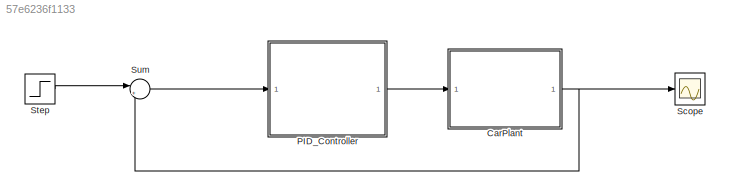
MODEL slx_57e6236f1133
KIND model
CONFIG AbsTol = auto
CONFIG EnableMultiTasking = off
CONFIG FixedStep = auto
CONFIG MaxStep = auto
CONFIG MinStep = auto
CONFIG RelTol = 1e-3
CONFIG SampleTimeConstraint = Unconstrained
CONFIG SolverName = FixedStepAuto
CONFIG StartTime = 0.0
CONFIG StopTime = 10.0
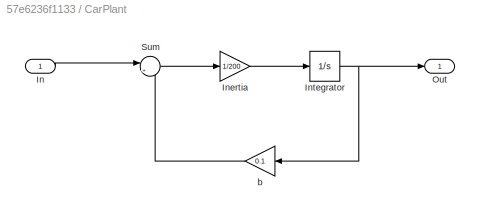
BLOCK [SubSystem] CarPlant
  Ports = [1, 1]
  RequestExecContextInheritance = off
BLOCK [Inport] CarPlant/In
BLOCK [Gain] CarPlant/Inertia
  Gain = 1/200
BLOCK [Integrator] CarPlant/Integrator
  Ports = [1, 1]
BLOCK [Outport] CarPlant/Out
BLOCK [Sum] CarPlant/Sum
  Inputs = |+-
  Ports = [2, 1]
BLOCK [Gain] CarPlant/b
  Gain = 0.1
  NameLocation = top
BLOCK [ModelReference] PID_Controller
  Kd = 346
  Ki = 76
  Kp = 1000
  ModelNameDialog = PID_Controller
  ModelReferenceVersion = 1.10
  Ports = [1, 1]
  UsingDefaultArgumentValue = 0,0,0
BLOCK [Scope] Scope
  Floating = off
  NumInputPorts = 1
  Ports = [1]
  ScopeSpecificationString = Simulink.scopes.TimeScopeBlockCfg('CurrentConfiguration', extmgr.ConfigurationSet(extmgr.Configuration('Core','General UI',true),extmgr.Configuration('Core','Source UI',true),extmgr.Configuration('Sources','WiredSimulink',true),extmgr.Configuration('Visuals','Time Domain',true,'SerializedDisplays',{struct('MinYLimReal','-1.29221','MaxYLimReal','11.62993','YLabelReal','','MinYLimMag','0.00000','Max...<+1346ch>
BLOCK [Step] Step
  After = 10
  SampleTime = 0
BLOCK [Sum] Sum
  Inputs = |+-
  Ports = [2, 1]
LINE CarPlant/In:1 -> CarPlant/Sum:1
LINE CarPlant/Inertia:1 -> CarPlant/Integrator:1
NET CarPlant/Integrator:1 -> CarPlant/Out:1, CarPlant/b:1
LINE CarPlant/Sum:1 -> CarPlant/Inertia:1
LINE CarPlant/b:1 -> CarPlant/Sum:2
NET CarPlant:1 -> Scope:1, Sum:2
LINE PID_Controller:1 -> CarPlant:1
LINE Step:1 -> Sum:1
LINE Sum:1 -> PID_Controller:1
note: NET lines group one-source signal fan-out (src -> all destinations, sorted); 1:1 wires keep LINE
